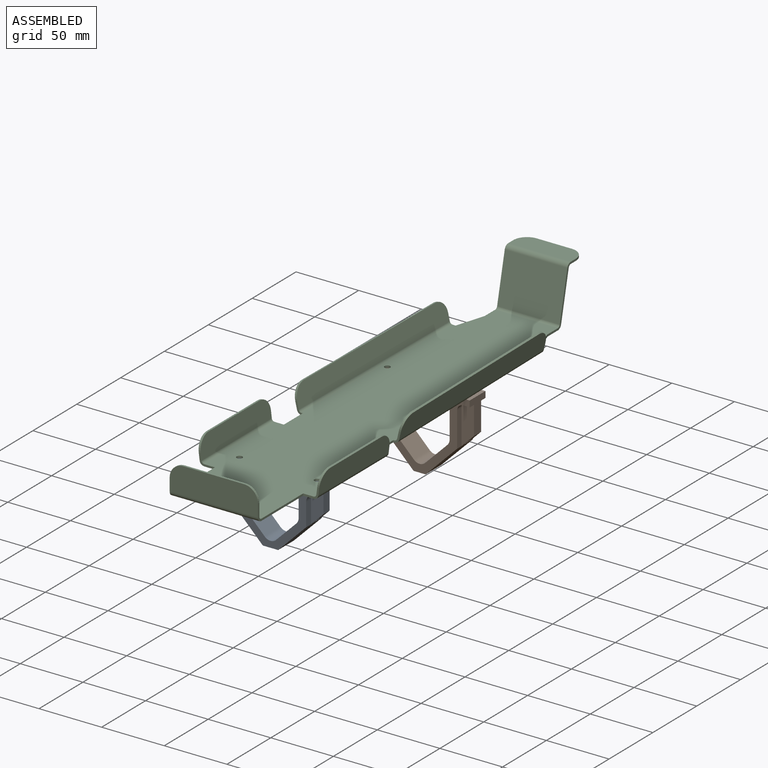
[diagram: assembled view]
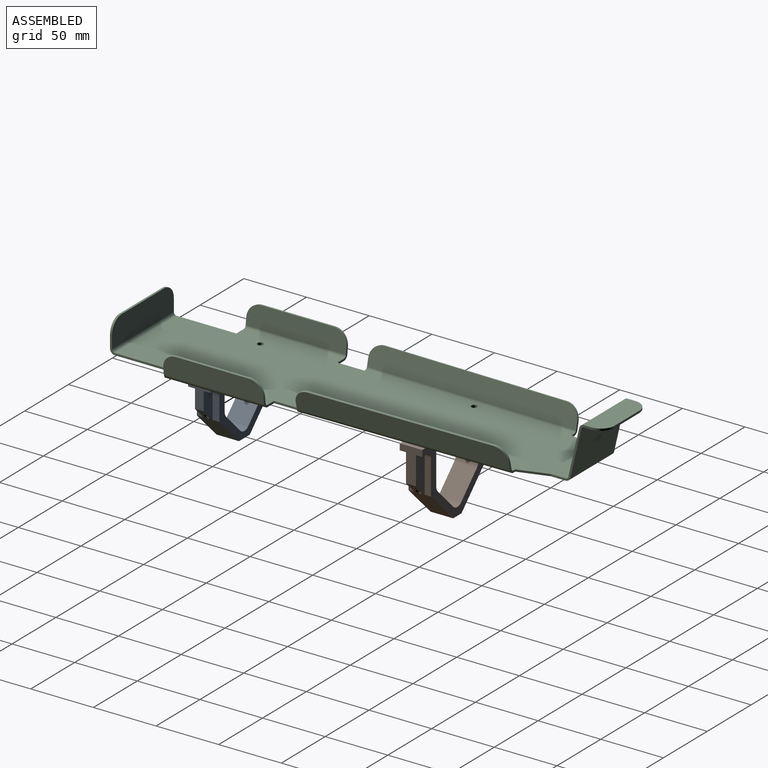
[diagram: assembled view, second angle]
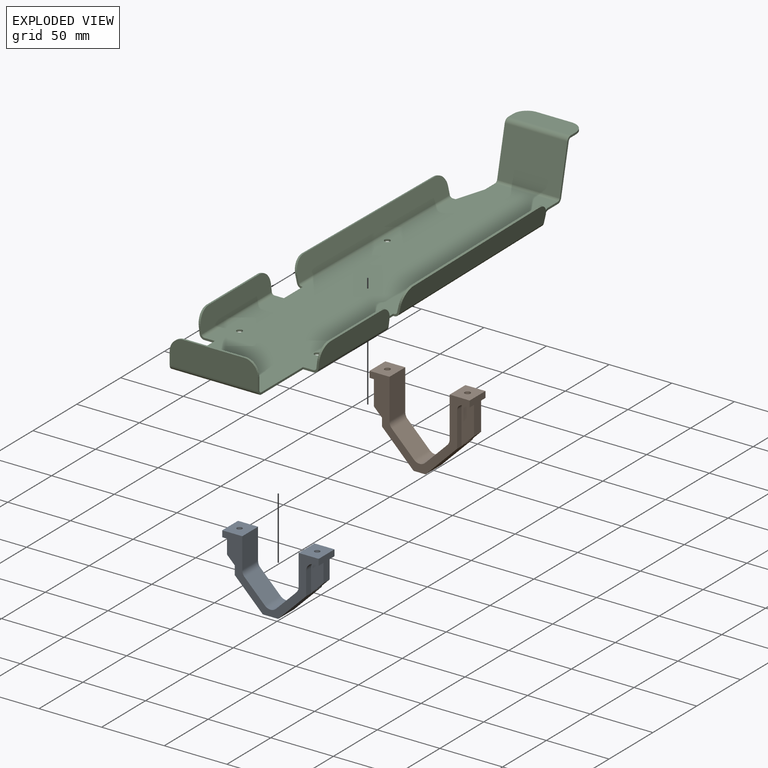
[diagram: exploded view]
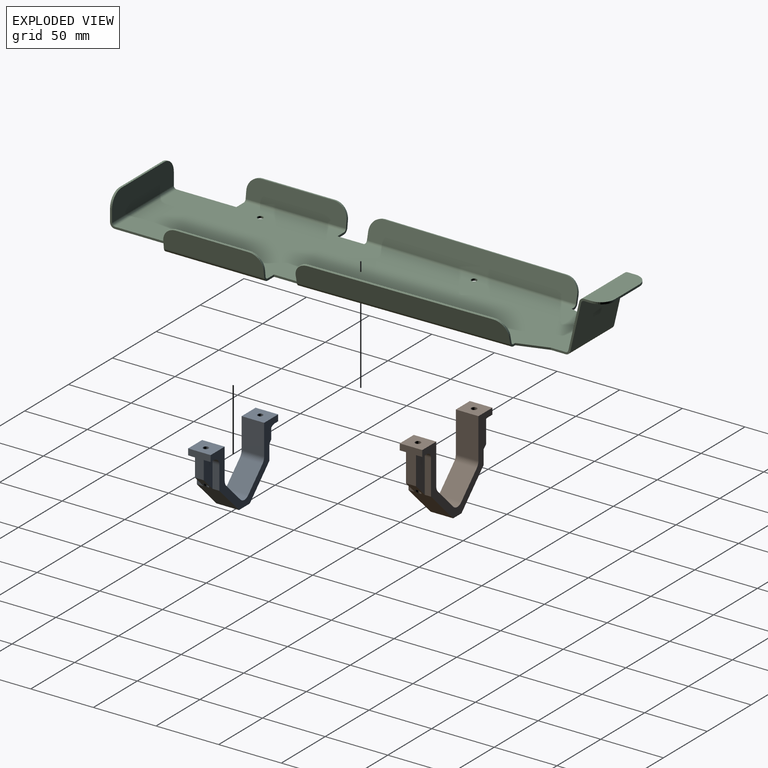
[diagram: exploded view, second angle]
ASSEMBLY  parts=3 mates=2
PART A: 34 faces, bbox 77.9x18.9x52.9 mm
  f0: plane 18.27x5.5mm, normal (1,0,0), area 100.5mm2, adj f2,f10,f27,f31
  f1: plane 5.5x3.65mm, normal (0,0,-1), area 20.1mm2, adj f2,f14,f27,f31
  f2: cylinder r=6.35mm len=6.35mm, axis (0,1,0), area 54.9mm2, adj f0,f1,f27,f31
  f3: plane 18.27x5.5mm, normal (-1,0,0), area 100.5mm2, adj f5,f8,f27,f29
  f4: plane 5.5x3.65mm, normal (0,0,-1), area 20.1mm2, adj f5,f24,f27,f29
  f5: cylinder r=6.35mm len=6.35mm, axis (0,1,0), area 54.9mm2, adj f3,f4,f27,f29
  f6: cylinder r=6.35mm len=6.35mm, axis (0,1,0), area 54.9mm2, adj f7,f25,f26,f28
  f7: plane 18.27x5.5mm, normal (-1,0,0), area 100.5mm2, adj f6,f8,f26,f28
  f8: plane 33.27x33.27mm, normal (-0.71,0,-0.71), area 649.2mm2, adj f3,f7,f9,f24,f26,f27,f28,f29
  f9: plane 18x12.23mm, normal (0,0,-1), area 220.2mm2, adj f8,f10,f26,f27
  f10: plane 32.38x32.38mm, normal (0.71,0,-0.71), area 649.2mm2, adj f0,f9,f11,f14,f26,f27,f30,f31
  f11: plane 18.27x5.5mm, normal (1,0,0), area 100.5mm2, adj f10,f12,f26,f30
  f12: cylinder r=6.35mm len=6.35mm, axis (0,1,0), area 54.9mm2, adj f11,f13,f26,f30
  f13: plane 5.5x3.65mm, normal (0,0,-1), area 20.1mm2, adj f12,f14,f26,f30
  f14: plane 19.62x18mm, normal (1,0,0), area 192.3mm2, adj f1,f10,f13,f15,f26,f27,f30,f31
  f15: plane 18x16mm, normal (0,0,1), area 274.1mm2, adj f14,f16,f26,f27,f33
  f16: plane 24.5x18mm, normal (-1,0,0), area 441mm2, adj f15,f17,f26,f27
  f17: cylinder r=6.35mm len=18mm, axis (0,1,0), area 89.8mm2, adj f16,f18,f26,f27
  f18: plane 18x16.15mm, normal (-0.71,0,0.71), area 411.1mm2, adj f17,f19,f26,f27
  f19: cylinder r=6.35mm len=18mm, axis (0,1,0), area 179.5mm2, adj f18,f20,f26,f27
  f20: plane 18x16.15mm, normal (0.71,0,0.71), area 411.1mm2, adj f19,f21,f26,f27
  f21: cylinder r=6.35mm len=18mm, axis (0,1,0), area 89.8mm2, adj f20,f22,f26,f27
  f22: plane 24.5x18mm, normal (1,0,0), area 441mm2, adj f21,f23,f26,f27
  f23: plane 18x16mm, normal (0,0,1), area 274.1mm2, adj f22,f24,f26,f27,f32
  f24: plane 19.62x18mm, normal (-1,0,0), area 192.3mm2, adj f4,f8,f23,f25,f26,f27,f28,f29
  f25: plane 5.5x3.65mm, normal (0,0,-1), area 20.1mm2, adj f6,f24,f26,f28
  f26: plane 77x52mm, normal (0,-1,0), area 863.5mm2, adj f6,f7,f8,f9,f10,f11,f12,f13
  f27: plane 77x52mm, normal (0,1,0), area 863.5mm2, adj f0,f1,f2,f3,f4,f5,f8,f9
  f28: plane 24.62x10mm, normal (0,-1,0), area 187.5mm2, adj f6,f7,f8,f24,f25
  f29: plane 24.62x10mm, normal (0,1,0), area 187.5mm2, adj f3,f4,f5,f8,f24
  f30: plane 24.62x10mm, normal (0,-1,0), area 187.5mm2, adj f10,f11,f12,f13,f14
  f31: plane 24.62x10mm, normal (0,1,0), area 187.5mm2, adj f0,f1,f2,f10,f14
  f32: cylinder r=2.1mm len=29.22mm, axis (0,0,1), area 357.8mm2, adj f8,f23
  f33: cylinder r=2.1mm len=29.24mm, axis (0,0,1), area 357.8mm2, adj f10,f15
PART B: 34 faces, bbox 80.9x18.9x63.7 mm
  f0: plane 27.73x5mm, normal (-1,0,0), area 138.6mm2, adj f2,f8,f21,f31
  f1: plane 5.24x5mm, normal (0,0,-1), area 26.2mm2, adj f2,f21,f25,f31
  f2: cylinder r=4.76mm len=5mm, axis (0,1,0), area 37.4mm2, adj f0,f1,f21,f31
  f3: plane 27.73x5mm, normal (1,0,0), area 138.6mm2, adj f5,f10,f21,f29
  f4: plane 5.24x5mm, normal (0,0,-1), area 26.2mm2, adj f5,f21,f24,f29
  f5: cylinder r=4.76mm len=5mm, axis (0,1,0), area 37.4mm2, adj f3,f4,f21,f29
  f6: plane 27.73x5mm, normal (1,0,0), area 138.6mm2, adj f10,f20,f22,f28
  f7: plane 27.73x5mm, normal (-1,0,0), area 138.6mm2, adj f8,f20,f27,f30
  f8: plane 36.18x36.18mm, normal (-0.71,0,-0.71), area 733mm2, adj f0,f7,f9,f20,f21,f25,f30,f31
  f9: plane 18x9.53mm, normal (0,0,-1), area 171.6mm2, adj f8,f10,f20,f21
  f10: plane 35.23x35.23mm, normal (0.71,0,-0.71), area 733mm2, adj f3,f6,f9,f20,f21,f24,f28,f29
  f11: plane 18x16mm, normal (0,0,1), area 272.1mm2, adj f12,f20,f21,f24,f33
  f12: plane 32.37x18mm, normal (-1,0,0), area 582.7mm2, adj f11,f13,f20,f21
  f13: cylinder r=6.35mm len=18mm, axis (0,1,0), area 89.8mm2, adj f12,f14,f20,f21
  f14: plane 18x17.65mm, normal (-0.71,0,0.71), area 449.3mm2, adj f13,f15,f20,f21
  f15: cylinder r=6.35mm len=18mm, axis (0,1,0), area 179.5mm2, adj f14,f16,f20,f21
  f16: plane 18x17.65mm, normal (0.71,0,0.71), area 449.3mm2, adj f15,f17,f20,f21
  f17: cylinder r=6.35mm len=18mm, axis (0,1,0), area 89.8mm2, adj f16,f18,f20,f21
  f18: plane 32.37x18mm, normal (1,0,0), area 582.7mm2, adj f17,f19,f20,f21
  f19: plane 18x16mm, normal (0,0,1), area 272.1mm2, adj f18,f20,f21,f25,f32
  f20: plane 80x62.72mm, normal (0,-1,0), area 990.5mm2, adj f6,f7,f8,f9,f10,f11,f12,f13
  f21: plane 80x62.72mm, normal (0,1,0), area 990.5mm2, adj f0,f1,f2,f3,f4,f5,f8,f9
  f22: cylinder r=4.76mm len=5mm, axis (0,1,0), area 37.4mm2, adj f6,f20,f23,f28
  f23: plane 5.24x5mm, normal (0,0,-1), area 26.2mm2, adj f20,f22,f24,f28
  f24: plane 27.49x18mm, normal (1,0,0), area 269.9mm2, adj f4,f10,f11,f20,f21,f23,f28,f29
  f25: plane 27.49x18mm, normal (-1,0,0), area 269.9mm2, adj f1,f8,f19,f20,f21,f26,f30,f31
  f26: plane 5.24x5mm, normal (0,0,-1), area 26.2mm2, adj f20,f25,f27,f30
  f27: cylinder r=4.76mm len=5mm, axis (0,1,0), area 37.4mm2, adj f7,f20,f26,f30
  f28: plane 32.49x10mm, normal (0,-1,0), area 270mm2, adj f6,f10,f22,f23,f24
  f29: plane 32.49x10mm, normal (0,1,0), area 270mm2, adj f3,f4,f5,f10,f24
  f30: plane 32.49x10mm, normal (0,-1,0), area 270mm2, adj f7,f8,f25,f26,f27
  f31: plane 32.49x10mm, normal (0,1,0), area 270mm2, adj f0,f1,f2,f8,f25
  f32: cylinder r=2.25mm len=37.74mm, axis (0,0,1), area 501.7mm2, adj f8,f19
  f33: cylinder r=2.25mm len=37.77mm, axis (0,0,1), area 501.7mm2, adj f10,f11
PART C: 96 faces, bbox 98.9x388.1x43.9 mm
  f0: plane 7.37x1.6mm, normal (0,1,0), area 11.8mm2, adj f1,f20,f21,f30
  f1: plane 21.37x1.6mm, normal (-1,0,0), area 34.2mm2, adj f0,f2,f20,f21
  f2: plane 1.6x0.8mm, normal (-0.01,-1,0), area 1.3mm2, adj f1,f20,f21,f62
  f3: plane 2.46x1.6mm, normal (0.01,1,0), area 3.9mm2, adj f4,f20,f21,f63
  f4: plane 23.27x7.04mm, normal (-0.96,0.29,0), area 38.9mm2, adj f3,f5,f20,f21
  f5: plane 11.72x1.6mm, normal (-1,0,0), area 18.8mm2, adj f4,f20,f21,f93
  f6: plane 11.72x1.6mm, normal (1,0,0), area 18.8mm2, adj f7,f20,f21,f92
  f7: plane 23.26x7.51mm, normal (0.95,0.31,0), area 39.1mm2, adj f6,f8,f20,f21
  f8: plane 2x1.6mm, normal (-0.01,1,0), area 3.2mm2, adj f7,f20,f21,f51
  f9: plane 1.6x0.8mm, normal (0.01,-1,0), area 1.3mm2, adj f10,f20,f21,f52
  f10: plane 21.37x1.6mm, normal (1,0,0), area 34.2mm2, adj f9,f11,f20,f21
  f11: plane 7.37x1.6mm, normal (0,1,0), area 11.8mm2, adj f10,f20,f21,f40
  f12: plane 8.33x1.6mm, normal (0,-1,0), area 13.3mm2, adj f13,f20,f21,f41
  f13: plane 47.62x1.6mm, normal (1,0,0), area 76.2mm2, adj f12,f20,f21,f73
  f14: plane 47.62x1.6mm, normal (-1,0,0), area 76.2mm2, adj f19,f20,f21,f74
  f15: cylinder r=2.25mm len=4.5mm, axis (0,0,1), area 22.6mm2, adj f20,f21
  f16: cylinder r=2.25mm len=4.5mm, axis (0,0,1), area 22.6mm2, adj f20,f21
  f17: cylinder r=2.25mm len=4.5mm, axis (0,0,1), area 22.6mm2, adj f20,f21
  f18: cylinder r=2.25mm len=4.5mm, axis (0,0,1), area 22.6mm2, adj f20,f21
  f19: plane 8.33x1.6mm, normal (0,-1,0), area 13.3mm2, adj f14,f20,f21,f29
  f20: plane 352.61x87.1mm, normal (0,0,-1), area 25779.7mm2, adj f0,f1,f2,f3,f4,f5,f6,f7
  f21: plane 352.61x87.1mm, normal (0,0,1), area 25779.7mm2, adj f0,f1,f2,f3,f4,f5,f6,f7
  f22: plane 58.08x1.59mm, normal (-0.12,0,0.99), area 92.9mm2, adj f25,f26,f27,f28
  f23: plane 5.7x2.26mm, normal (0,1,0), area 8.9mm2, adj f25,f26,f27,f30
  f24: plane 5.7x2.26mm, normal (0,-1,0), area 8.9mm2, adj f25,f26,f28,f29
  f25: plane 80.08x16.43mm, normal (-0.99,0,-0.12), area 1273.4mm2, adj f22,f23,f24,f27,f28,f31
  f26: plane 80.08x16.43mm, normal (0.99,0,0.12), area 1273.4mm2, adj f22,f23,f24,f27,f28,f32
  f27: cylinder r=11mm len=11.11mm, axis (-0.99,0,-0.12), area 27.6mm2, adj f22,f23,f25,f26
  f28: cylinder r=11mm len=11.11mm, axis (-0.99,0,-0.12), area 27.6mm2, adj f22,f24,f25,f26
  f29: plane 3.87x3.62mm, normal (0,-1,0), area 7.2mm2, adj f19,f24,f31,f32
  f30: plane 3.87x3.62mm, normal (0,1,0), area 7.2mm2, adj f0,f23,f31,f32
  f31: cylinder r=3.9mm len=80.08mm, axis (0,-1,0), area 452.4mm2, adj f20,f25,f29,f30
  f32: cylinder r=2.3mm len=80.08mm, axis (0,-1,0), area 266.8mm2, adj f21,f26,f29,f30
  f33: plane 58.08x1.59mm, normal (0.12,0,0.99), area 92.9mm2, adj f36,f37,f38,f39
  f34: plane 5.7x2.26mm, normal (0,-1,0), area 8.9mm2, adj f36,f37,f39,f41
  f35: plane 5.7x2.26mm, normal (0,1,0), area 8.9mm2, adj f36,f37,f38,f40
  f36: plane 80.08x16.43mm, normal (0.99,0,-0.12), area 1273.4mm2, adj f33,f34,f35,f38,f39,f42
  f37: plane 80.08x16.43mm, normal (-0.99,0,0.12), area 1273.4mm2, adj f33,f34,f35,f38,f39,f43
  f38: cylinder r=11mm len=11.11mm, axis (0.99,0,-0.12), area 27.6mm2, adj f33,f35,f36,f37
  f39: cylinder r=11mm len=11.11mm, axis (0.99,0,-0.12), area 27.6mm2, adj f33,f34,f36,f37
  f40: plane 3.87x3.62mm, normal (0,1,0), area 7.2mm2, adj f11,f35,f42,f43
  f41: plane 3.87x3.62mm, normal (0,-1,0), area 7.2mm2, adj f12,f34,f42,f43
  f42: cylinder r=3.9mm len=80.08mm, axis (0,1,0), area 452.4mm2, adj f20,f36,f40,f41
  f43: cylinder r=2.3mm len=80.08mm, axis (0,1,0), area 266.8mm2, adj f21,f37,f40,f41
  f44: plane 146.6x3.71mm, normal (0.22,0,0.97), area 234.5mm2, adj f47,f48,f49,f50
  f45: plane 6.11x2.89mm, normal (0.01,-1,0), area 9.4mm2, adj f47,f48,f50,f52
  f46: plane 6.11x2.89mm, normal (-0.01,1,0), area 9.4mm2, adj f47,f48,f49,f51
  f47: plane 168.59x16.46mm, normal (0.97,0.01,-0.22), area 2796.9mm2, adj f44,f45,f46,f49,f50,f53
  f48: plane 168.59x16.46mm, normal (-0.97,-0.01,0.22), area 2796.9mm2, adj f44,f45,f46,f49,f50,f54
  f49: cylinder r=11mm len=11.08mm, axis (0.97,0.01,-0.22), area 27.6mm2, adj f44,f46,f47,f48
  f50: cylinder r=11mm len=11.08mm, axis (0.97,0.01,-0.22), area 27.6mm2, adj f44,f45,f47,f48
  f51: plane 3.8x3.38mm, normal (-0.01,1,0), area 6.7mm2, adj f8,f46,f53,f54
  f52: plane 3.8x3.38mm, normal (0.01,-1,0), area 6.7mm2, adj f9,f45,f53,f54
  f53: cylinder r=3.9mm len=168.63mm, axis (-0.01,1,0), area 883.6mm2, adj f20,f47,f51,f52
  f54: cylinder r=2.3mm len=168.61mm, axis (-0.01,1,0), area 521.1mm2, adj f21,f48,f51,f52
  f55: plane 146.6x3.71mm, normal (-0.22,0,0.97), area 234.5mm2, adj f58,f59,f60,f61
  f56: plane 6.11x2.89mm, normal (0.01,1,0), area 9.4mm2, adj f58,f59,f60,f63
  f57: plane 6.11x2.89mm, normal (-0.01,-1,0), area 9.4mm2, adj f58,f59,f61,f62
  f58: plane 168.59x16.46mm, normal (-0.97,0.01,-0.22), area 2796.9mm2, adj f55,f56,f57,f60,f61,f64
  f59: plane 168.59x16.46mm, normal (0.97,-0.01,0.22), area 2796.9mm2, adj f55,f56,f57,f60,f61,f65
  f60: cylinder r=11mm len=11.08mm, axis (-0.97,0.01,-0.22), area 27.6mm2, adj f55,f56,f58,f59
  f61: cylinder r=11mm len=11.08mm, axis (-0.97,0.01,-0.22), area 27.6mm2, adj f55,f57,f58,f59
  f62: plane 3.8x3.38mm, normal (-0.01,-1,0), area 6.7mm2, adj f2,f57,f64,f65
  f63: plane 3.8x3.38mm, normal (0.01,1,0), area 6.7mm2, adj f3,f56,f64,f65
  f64: cylinder r=3.9mm len=168.63mm, axis (-0.01,-1,0), area 883.6mm2, adj f20,f58,f62,f63
  f65: cylinder r=2.3mm len=168.61mm, axis (-0.01,-1,0), area 521.1mm2, adj f21,f59,f62,f63
  f66: plane 48.44x1.6mm, normal (0,0,1), area 77.5mm2, adj f69,f70,f71,f72
  f67: plane 10.1x1.6mm, normal (-1,0,0), area 16.2mm2, adj f69,f70,f71,f74
  f68: plane 10.1x1.6mm, normal (1,0,0), area 16.2mm2, adj f69,f70,f72,f73
  f69: plane 70.44x21.1mm, normal (0,-1,0), area 1434.4mm2, adj f66,f67,f68,f71,f72,f75
  f70: plane 70.44x21.1mm, normal (0,1,0), area 1434.4mm2, adj f66,f67,f68,f71,f72,f76
  f71: cylinder r=11mm len=11mm, axis (0,-1,0), area 27.6mm2, adj f66,f67,f69,f70
  f72: cylinder r=11mm len=11mm, axis (0,-1,0), area 27.6mm2, adj f66,f68,f69,f70
  f73: plane 3.9x3.9mm, normal (1,0,0), area 7.8mm2, adj f13,f68,f75,f76
  f74: plane 3.9x3.9mm, normal (-1,0,0), area 7.8mm2, adj f14,f67,f75,f76
  f75: cylinder r=3.9mm len=70.44mm, axis (1,0,0), area 431.5mm2, adj f20,f69,f73,f74
  f76: cylinder r=2.3mm len=70.44mm, axis (1,0,0), area 254.5mm2, adj f21,f70,f73,f74
  f77: plane 37.89x10.22mm, normal (1,0,0), area 61.6mm2, adj f79,f80,f88,f92
  f78: plane 37.89x10.22mm, normal (-1,0,0), area 61.6mm2, adj f79,f80,f89,f93
  f79: plane 50x37.53mm, normal (0,0.97,-0.22), area 1925.9mm2, adj f77,f78,f91,f94
  f80: plane 50x37.53mm, normal (0,-0.97,0.22), area 1925.9mm2, adj f77,f78,f90,f95
  f81: plane 28x1.6mm, normal (0,1,0), area 44.8mm2, adj f84,f85,f86,f87
  f82: plane 5.9x1.6mm, normal (1,0,0), area 9.4mm2, adj f84,f85,f86,f88
  f83: plane 5.9x1.6mm, normal (-1,0,0), area 9.4mm2, adj f84,f85,f87,f89
  f84: plane 50x16.9mm, normal (0,0,-1), area 793mm2, adj f81,f82,f83,f86,f87,f91
  f85: plane 50x16.9mm, normal (0,0,1), area 793mm2, adj f81,f82,f83,f86,f87,f90
  f86: cylinder r=11mm len=11mm, axis (0,0,-1), area 27.6mm2, adj f81,f82,f84,f85
  f87: cylinder r=11mm len=11mm, axis (0,0,-1), area 27.6mm2, adj f81,f83,f84,f85
  f88: plane 3.8x3.38mm, normal (1,0,0), area 6.7mm2, adj f77,f82,f90,f91
  f89: plane 3.8x3.38mm, normal (-1,0,0), area 6.7mm2, adj f78,f83,f90,f91
  f90: cylinder r=3.9mm len=50mm, axis (1,0,0), area 262.1mm2, adj f80,f85,f88,f89
  f91: cylinder r=2.3mm len=50mm, axis (1,0,0), area 154.5mm2, adj f79,f84,f88,f89
  f92: plane 3.8x3.38mm, normal (1,0,0), area 6.7mm2, adj f6,f77,f94,f95
  f93: plane 3.8x3.38mm, normal (-1,0,0), area 6.7mm2, adj f5,f78,f94,f95
  f94: cylinder r=3.9mm len=50mm, axis (1,0,0), area 262.1mm2, adj f20,f79,f92,f93
  f95: cylinder r=2.3mm len=50mm, axis (1,0,0), area 154.5mm2, adj f21,f80,f92,f93
PLACE A t=(-0.01,116.48,-51.62)mm
PLACE B t=(-0.01,71.48,-51.62)mm
PLACE C t=(-0.01,111.22,-51.62)mm
MATE fastened C.f16 <-> B.f32  axis (0,0,-1) through (-32.01,71.48,-1.6)mm
MATE fastened C.f18 <-> A.f32  axis (0,0,-1) through (-31.01,-98.52,-1.6)mm
